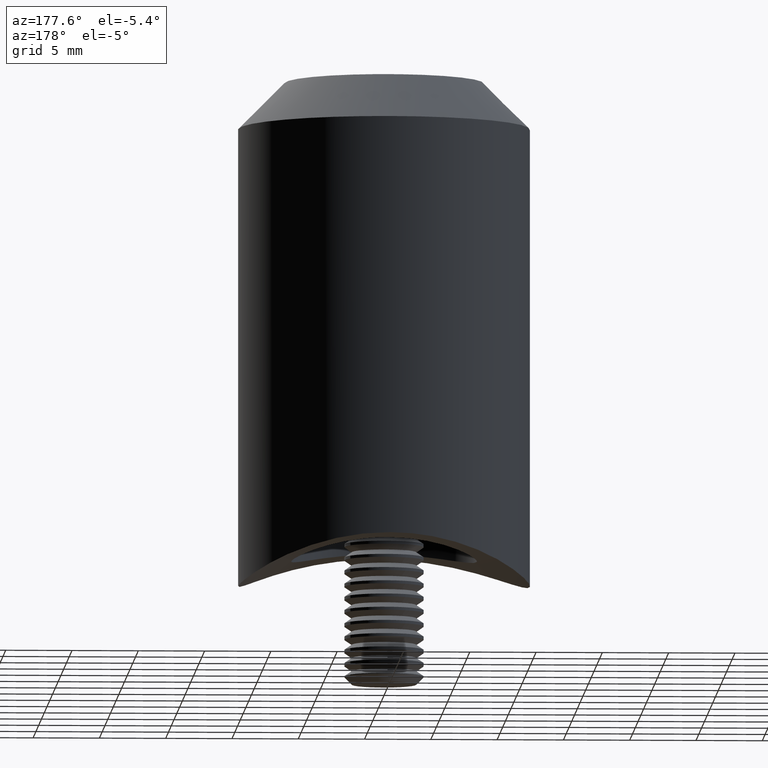
[diagram: clean part render]
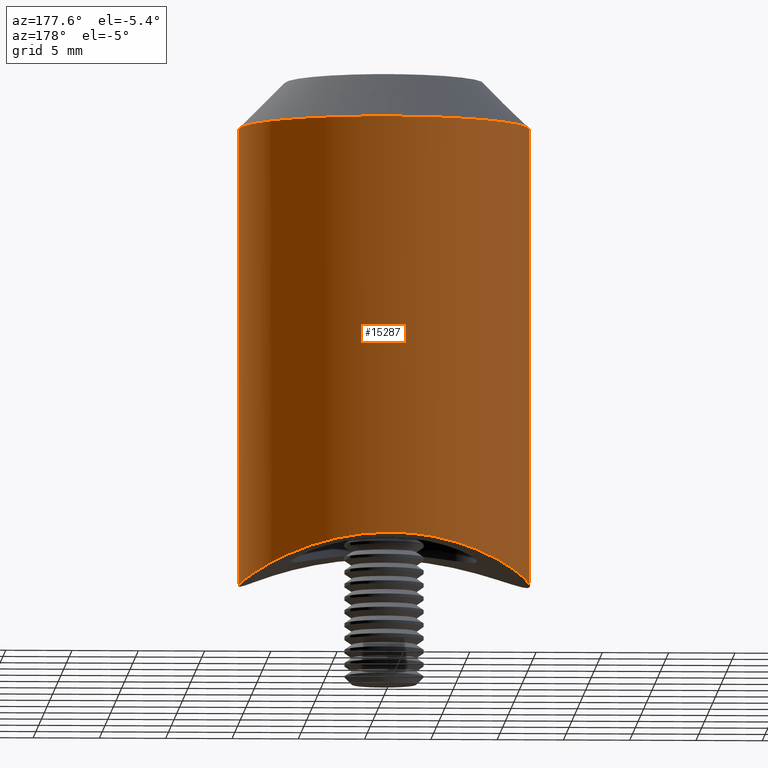
[diagram: same view with one face highlighted and labeled with its STEP entity id]
A machine part, auxiliary view. The second image highlights one B-rep face of the part: STEP entity #15287.
In plain terms, the highlighted cylindrical surface (partial cylindrical patch) has radius 11 mm, axis along (-0, -0, -1).
Its self-contained STEP definition (entity closure, byte-faithful):
#515 = EDGE_CURVE ( 'NONE', #17780, #853, #906, .T. ) ;
#536 = CARTESIAN_POINT ( 'NONE',  ( -10.98197988738960262, 0.7286795565369822425, -3.066110822070716058 ) ) ;
#586 = EDGE_CURVE ( 'NONE', #7321, #853, #19281, .T. ) ;
#608 = CARTESIAN_POINT ( 'NONE',  ( -0.3696725908103664082, 11.00000000000000178, -6.352747104407242528E-18 ) ) ;
#660 = EDGE_CURVE ( 'NONE', #19368, #17780, #759, .T. ) ;
#689 = AXIS2_PLACEMENT_3D ( 'NONE', #3263, #21358, #5046 ) ;
#730 = CARTESIAN_POINT ( 'NONE',  ( -10.99999999999999645, 0.000000000000000000, 0.000000000000000000 ) ) ;
#759 = B_SPLINE_CURVE_WITH_KNOTS ( 'NONE', 3,
 ( #7262, #13639, #536, #12206, #13709, #15296, #12283, #8874, #13923, #12126, #8657, #4025, #3808, #15591, #2221, #7045, #8728, #3951, #15374, #13784, #5448, #3880, #15447, #5527, #17103, #8951, #608, #18760 ),
 .UNSPECIFIED., .F., .F.,
 ( 4, 2, 2, 2, 2, 2, 2, 2, 2, 2, 2, 2, 2, 4 ),
 ( 0.05254394209585565995, 0.05363595187947398785, 0.05472796166309232269, 0.05691198123032897849, 0.05800399101394731333, 0.05909600079756564123, 0.06018801058118397607, 0.06128002036480230397, 0.06346403993203895977, 0.06455604971565728767, 0.06564805949927561557, 0.06783207906651228525, 0.06892408885013061315, 0.07001609863374894105 ),
 .UNSPECIFIED. ) ;
#853 = VERTEX_POINT ( 'NONE', #3427 ) ;
#906 = B_SPLINE_CURVE_WITH_KNOTS ( 'NONE', 3,
 ( #9404, #7933, #9333, #7784, #10994, #7862, #17620, #2751, #7715, #14303, #11063, #1143, #4539, #12710, #9538, #2816, #16113, #16041, #14374, #6183, #19348, #19415, #16392, #14881, #4963, #12912 ),
 .UNSPECIFIED., .F., .F.,
 ( 4, 2, 2, 2, 2, 2, 2, 2, 2, 2, 2, 2, 4 ),
 ( 1.195708045068055757E-18, 0.002191663058334598815, 0.003287494587501897571, 0.004383326116669195895, 0.006574989175003791674, 0.007670820704171090430, 0.008766652233338390054, 0.009862483762505687077, 0.01095831529167298236, 0.01314997835000758161, 0.01424580987917488037, 0.01534164140834217739, 0.01753330446667677317 ),
 .UNSPECIFIED. ) ;
#1143 = CARTESIAN_POINT ( 'NONE',  ( 7.282474585716978588, 8.251744462134642077, -1.287958292885838407 ) ) ;
#2221 = CARTESIAN_POINT ( 'NONE',  ( -8.031619971637821820, 7.524487005331417677, -1.578452092155186115 ) ) ;
#2230 = VECTOR ( 'NONE', #11767, 1000.000000000000000 ) ;
#2751 = CARTESIAN_POINT ( 'NONE',  ( 4.930741763280880541, 9.859387085056390276, -0.5702163848413646097 ) ) ;
#2816 = CARTESIAN_POINT ( 'NONE',  ( 8.727150591193277407, 6.705398263403655967, -1.878067932569394971 ) ) ;
#3207 = CARTESIAN_POINT ( 'NONE',  ( 3.612708057484691111E-16, 10.99999999999999645, -5.772463361043693066E-16 ) ) ;
#3263 = CARTESIAN_POINT ( 'NONE',  ( 0.000000000000000000, 0.000000000000000000, 0.000000000000000000 ) ) ;
#3410 = ORIENTED_EDGE ( 'NONE', *, *, #586, .T. ) ;
#3427 = CARTESIAN_POINT ( 'NONE',  ( 10.99999999999999645, 1.347111478373890687E-15, -3.077086326972693797 ) ) ;
#3713 = FACE_OUTER_BOUND ( 'NONE', #13256, .T. ) ;
#3808 = CARTESIAN_POINT ( 'NONE',  ( -8.722097608522584977, 6.711995662622084247, -1.875779458778207287 ) ) ;
#3880 = CARTESIAN_POINT ( 'NONE',  ( -3.601447740074377624, 10.41840057596098923, -0.2972642184565118528 ) ) ;
#3951 = CARTESIAN_POINT ( 'NONE',  ( -5.856795318891052204, 9.317938581305165613, -0.8227447210148480794 ) ) ;
#4003 = VECTOR ( 'NONE', #8618, 1000.000000000000000 ) ;
#4025 = CARTESIAN_POINT ( 'NONE',  ( -8.933192425236915923, 6.428306053531615660, -1.972784283776629399 ) ) ;
#4095 = EDGE_CURVE ( 'NONE', #7343, #7321, #21283, .T. ) ;
#4539 = CARTESIAN_POINT ( 'NONE',  ( 7.543264260545918809, 8.013949365948279890, -1.385593138103728084 ) ) ;
#4963 = CARTESIAN_POINT ( 'NONE',  ( 10.99999999999999645, 0.7340074369843768709, -3.077086326972690689 ) ) ;
#5046 = DIRECTION ( 'NONE',  ( -1.000000000000000000, 0.000000000000000000, 0.000000000000000000 ) ) ;
#5448 = CARTESIAN_POINT ( 'NONE',  ( -4.592365084152460142, 10.00192766571900016, -0.5006309231843062424 ) ) ;
#5527 = CARTESIAN_POINT ( 'NONE',  ( -1.839828858917541554, 10.85120347340271429, -0.07691601962366578782 ) ) ;
#6183 = CARTESIAN_POINT ( 'NONE',  ( 10.28471204833922314, 3.918214414354111330, -2.661138079640683163 ) ) ;
#7045 = CARTESIAN_POINT ( 'NONE',  ( -7.282508670216244262, 8.274319531966190411, -1.282838702694907740 ) ) ;
#7262 = CARTESIAN_POINT ( 'NONE',  ( -10.99999999999999645, 3.193579555179582804E-18, -3.077086326972692021 ) ) ;
#7321 = VERTEX_POINT ( 'NONE', #15907 ) ;
#7343 = VERTEX_POINT ( 'NONE', #7577 ) ;
#7577 = CARTESIAN_POINT ( 'NONE',  ( -10.99999999999999645, 0.000000000000000000, 31.50000000000000000 ) ) ;
#7715 = CARTESIAN_POINT ( 'NONE',  ( 5.558625263712018594, 9.519142141250162226, -0.7323137985773118253 ) ) ;
#7784 = CARTESIAN_POINT ( 'NONE',  ( 2.538828015669838400, 10.70918895000196613, -0.1495159202499248274 ) ) ;
#7862 = CARTESIAN_POINT ( 'NONE',  ( 3.591129110858321649, 10.40373162204128654, -0.3033750366247364161 ) ) ;
#7933 = CARTESIAN_POINT ( 'NONE',  ( 0.7419326942963495597, 11.00000000000000711, 7.623296525288703052E-18 ) ) ;
#8273 = CARTESIAN_POINT ( 'NONE',  ( -10.99999999999999645, 3.193579555179582804E-18, -3.077086326972692021 ) ) ;
#8618 = DIRECTION ( 'NONE',  ( -0.000000000000000000, -0.000000000000000000, -1.000000000000000000 ) ) ;
#8657 = CARTESIAN_POINT ( 'NONE',  ( -9.327623629971718344, 5.841274094046148946, -2.161008731498130775 ) ) ;
#8728 = CARTESIAN_POINT ( 'NONE',  ( -6.739741428634373754, 8.722385495068872174, -1.090444512013719613 ) ) ;
#8874 = CARTESIAN_POINT ( 'NONE',  ( -10.00550077941369054, 4.584768902126567625, -2.508954615118606846 ) ) ;
#8951 = CARTESIAN_POINT ( 'NONE',  ( -0.7393041797993902264, 10.98132203423230457, -0.009709164036961712499 ) ) ;
#9327 = DIRECTION ( 'NONE',  ( -0.000000000000000000, -0.000000000000000000, -1.000000000000000000 ) ) ;
#9333 = CARTESIAN_POINT ( 'NONE',  ( 1.469018375935359444, 10.92572595533776258, -0.03880684481591557128 ) ) ;
#9404 = CARTESIAN_POINT ( 'NONE',  ( 3.612708057484691111E-16, 10.99999999999999645, -5.772463361043693066E-16 ) ) ;
#9538 = CARTESIAN_POINT ( 'NONE',  ( 8.277569532031012756, 7.253093543765571027, -1.681238284610363731 ) ) ;
#10994 = CARTESIAN_POINT ( 'NONE',  ( 2.891936985145792782, 10.61934745774248157, -0.1951947491827913106 ) ) ;
#11063 = CARTESIAN_POINT ( 'NONE',  ( 6.735935478594885062, 8.703613961349052630, -1.096492488481661365 ) ) ;
#11262 = CARTESIAN_POINT ( 'NONE',  ( 10.99999999999999645, 1.347111479062088010E-15, 0.000000000000000000 ) ) ;
#11762 = LINE ( 'NONE', #730, #4003 ) ;
#11767 = DIRECTION ( 'NONE',  ( -0.000000000000000000, -0.000000000000000000, -1.000000000000000000 ) ) ;
#12126 = CARTESIAN_POINT ( 'NONE',  ( -9.510960417715814685, 5.537933664919412635, -2.252233752759269958 ) ) ;
#12206 = CARTESIAN_POINT ( 'NONE',  ( -10.90892921239843538, 1.459492919484265627, -3.022071559076633829 ) ) ;
#12283 = CARTESIAN_POINT ( 'NONE',  ( -10.42386209908590189, 3.586600879699334943, -2.736956029803305324 ) ) ;
#12626 = CARTESIAN_POINT ( 'NONE',  ( 0.000000000000000000, 0.000000000000000000, 31.50000000000000000 ) ) ;
#12710 = CARTESIAN_POINT ( 'NONE',  ( 8.040812121272853830, 7.514623115952238308, -1.582230110851464477 ) ) ;
#12912 = CARTESIAN_POINT ( 'NONE',  ( 10.99999999999999645, 1.347111478373890687E-15, -3.077086326972693797 ) ) ;
#13072 = ORIENTED_EDGE ( 'NONE', *, *, #4095, .T. ) ;
#13256 = EDGE_LOOP ( 'NONE', ( #13072, #3410, #16582, #18604, #13403 ) ) ;
#13403 = ORIENTED_EDGE ( 'NONE', *, *, #14058, .F. ) ;
#13639 = CARTESIAN_POINT ( 'NONE',  ( -10.99999999999999289, 0.3639891504037569003, -3.077086326972692909 ) ) ;
#13709 = CARTESIAN_POINT ( 'NONE',  ( -10.85354599617498117, 1.825767780256814410, -2.988805665340894979 ) ) ;
#13784 = CARTESIAN_POINT ( 'NONE',  ( -4.915962326399844429, 9.846985028586626498, -0.5752513848814714281 ) ) ;
#13923 = CARTESIAN_POINT ( 'NONE',  ( -9.849565231484449512, 4.910513424799635374, -2.426021237410415754 ) ) ;
#14058 = EDGE_CURVE ( 'NONE', #7343, #19368, #11762, .T. ) ;
#14303 = CARTESIAN_POINT ( 'NONE',  ( 6.448714568181097562, 8.918642043498238081, -1.002222802157150428 ) ) ;
#14374 = CARTESIAN_POINT ( 'NONE',  ( 9.870708631587868709, 4.907131093288831458, -2.435460997191869037 ) ) ;
#14881 = CARTESIAN_POINT ( 'NONE',  ( 10.92727584386590856, 1.457321169953931461, -3.032379509440411791 ) ) ;
#15256 = AXIS2_PLACEMENT_3D ( 'NONE', #12626, #9327, #15904 ) ;
#15287 = ADVANCED_FACE ( 'NONE', ( #3713 ), #19727, .T. ) ;
#15296 = CARTESIAN_POINT ( 'NONE',  ( -10.63650719179218562, 2.897631700715723735, -2.860617406734315082 ) ) ;
#15374 = CARTESIAN_POINT ( 'NONE',  ( -5.549761913631884092, 9.504206566031310643, -0.7366893261765389278 ) ) ;
#15447 = CARTESIAN_POINT ( 'NONE',  ( -2.914203811307436442, 10.63211006109950496, -0.1889075858795457585 ) ) ;
#15591 = CARTESIAN_POINT ( 'NONE',  ( -8.271453200055702837, 7.260091902100230143, -1.678638669968173680 ) ) ;
#15904 = DIRECTION ( 'NONE',  ( 1.000000000000000000, 0.000000000000000000, 0.000000000000000000 ) ) ;
#15907 = CARTESIAN_POINT ( 'NONE',  ( 10.99999999999999645, 1.347111479062088010E-15, 31.50000000000000000 ) ) ;
#16041 = CARTESIAN_POINT ( 'NONE',  ( 9.534886574924913205, 5.531016695469326727, -2.260133909844345812 ) ) ;
#16113 = CARTESIAN_POINT ( 'NONE',  ( 8.940915877906990161, 6.417676774717737231, -1.976364270991337824 ) ) ;
#16392 = CARTESIAN_POINT ( 'NONE',  ( 10.71198128154920326, 2.527002693671354994, -2.905180926339459901 ) ) ;
#16582 = ORIENTED_EDGE ( 'NONE', *, *, #515, .F. ) ;
#17103 = CARTESIAN_POINT ( 'NONE',  ( -1.473140175474142222, 10.90714730409325206, -0.04805317692075933289 ) ) ;
#17620 = CARTESIAN_POINT ( 'NONE',  ( 3.934003028604572183, 10.27879137730768022, -0.3654453669621840484 ) ) ;
#17780 = VERTEX_POINT ( 'NONE', #3207 ) ;
#18604 = ORIENTED_EDGE ( 'NONE', *, *, #660, .F. ) ;
#18760 = CARTESIAN_POINT ( 'NONE',  ( 3.612708057484691111E-16, 10.99999999999999645, -5.772463361043693066E-16 ) ) ;
#19281 = LINE ( 'NONE', #11262, #2230 ) ;
#19348 = CARTESIAN_POINT ( 'NONE',  ( 10.40763100223946402, 3.579659658725590887, -2.730121554616149915 ) ) ;
#19368 = VERTEX_POINT ( 'NONE', #8273 ) ;
#19415 = CARTESIAN_POINT ( 'NONE',  ( 10.62169230754641447, 2.883123111296623797, -2.852388564452311925 ) ) ;
#19727 = CYLINDRICAL_SURFACE ( 'NONE', #689, 10.99999999999999645 ) ;
#21283 = CIRCLE ( 'NONE', #15256, 10.99999999999999645 ) ;
#21358 = DIRECTION ( 'NONE',  ( -0.000000000000000000, -0.000000000000000000, -1.000000000000000000 ) ) ;